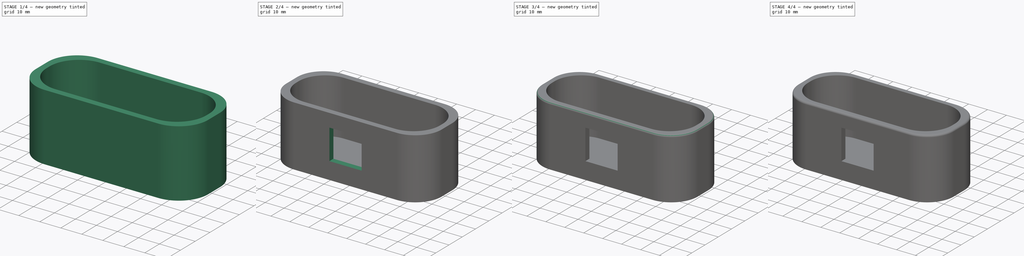
[diagram: build sequence overview — one tinted view per stage of 4, left to right]
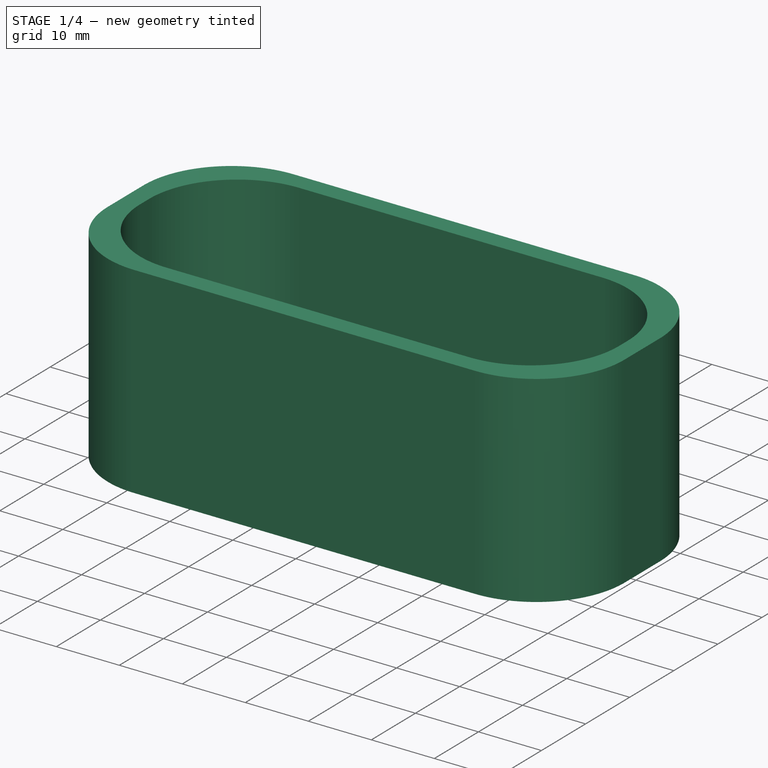
[diagram: stage 1 of 4 — iso view after this stage's code; geometry added in this stage tinted green]
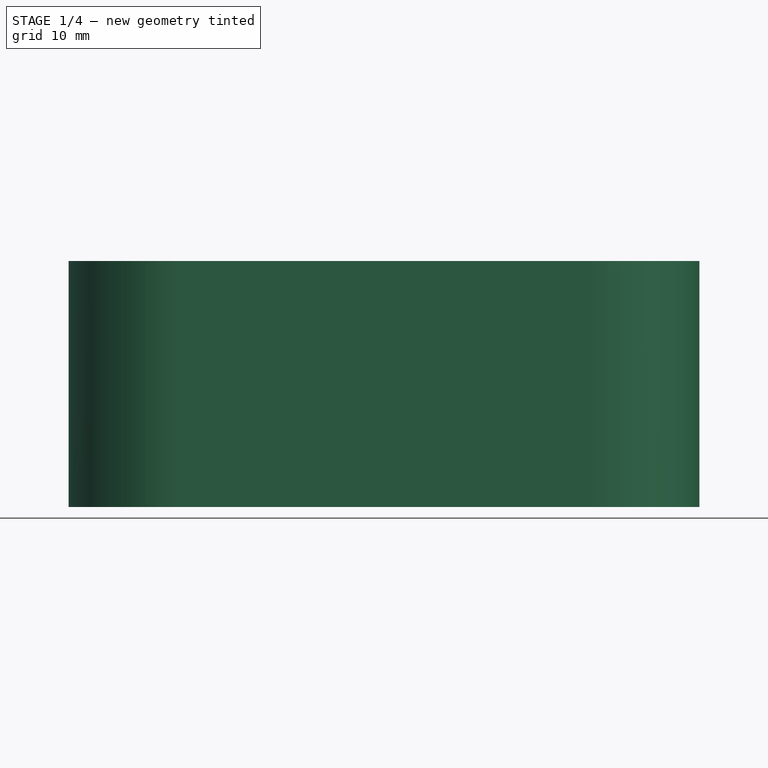
[diagram: stage 1 of 4 — front view after this stage's code; geometry added in this stage tinted green]
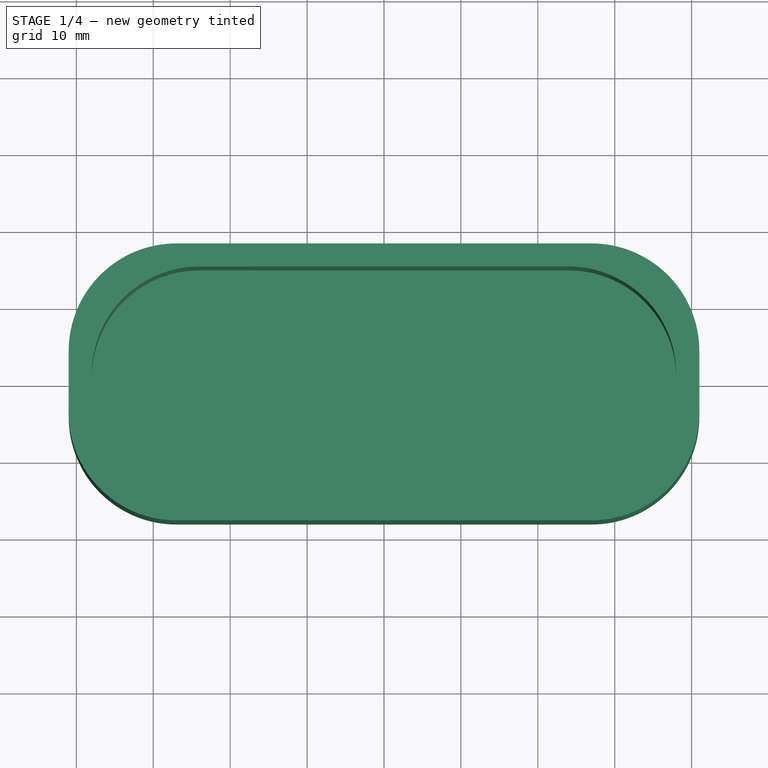
[diagram: stage 1 of 4 — top view after this stage's code; geometry added in this stage tinted green]
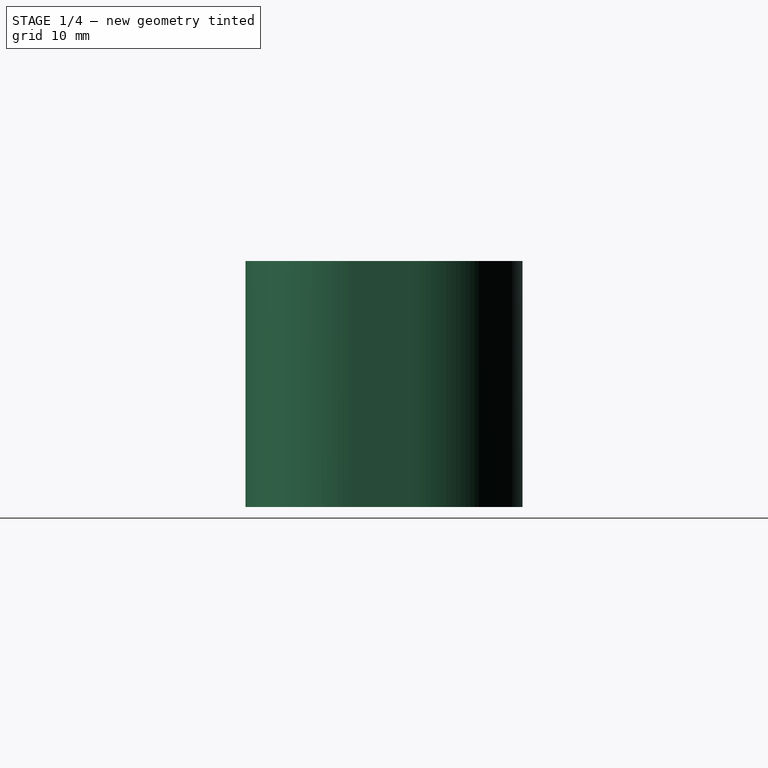
[diagram: stage 1 of 4 — right view after this stage's code; geometry added in this stage tinted green]
FCSTD DOCUMENT  (FreeCAD 0.19R24366 (Git))
Label: xiaomi_case
License: All rights reserved
LicenseURL: http://en.wikipedia.org/wiki/All_rights_reserved
objects: Sketcher::SketchObject×6, PartDesign::Fillet×5, PartDesign::Pocket×4, PartDesign::Pad×2, PartDesign::Chamfer×1, PartDesign::Body×1
note: 31 computed .brp shape members not serialized (recipe doc carries the construction recipe); baked Part::Feature solids carry a one-line shape summary decoded from their .brp

FEATURE [Sketcher::SketchObject] Sketch
  FullyConstrained = true
  MapMode = 5
  Support = -> [XY_Plane]
  sketch-geometry (4):
    g0: LineSegment StartX=-41 StartY=18 StartZ=0 EndX=41 EndY=18 EndZ=0
    g1: LineSegment StartX=41 StartY=18 StartZ=0 EndX=41 EndY=-18 EndZ=0
    g2: LineSegment StartX=41 StartY=-18 StartZ=0 EndX=-41 EndY=-18 EndZ=0
    g3: LineSegment StartX=-41 StartY=-18 StartZ=0 EndX=-41 EndY=18 EndZ=0
  constraints (10):
    c: Coincident(g0,g1)
    c: Coincident(g1,g2)
    c: Coincident(g2,g3)
    c: Coincident(g3,g0)
    c: Horizontal(g0)
    c: Vertical(g1)
    c: Distance(g3) = 36
    c: Distance(g2) = 82
    c: Symmetric(g1,g2,g-2)
    c: Symmetric(g0,g2,g-1)
FEATURE [PartDesign::Pad] Pad  label="Outer Base"
  Direction = (1,1,1)
  Length = 32
  Length2 = 100
  Profile = -> Sketch
  Type = 0
FEATURE [Sketcher::SketchObject] Sketch001
  FullyConstrained = true
  MapMode = 5
  Placement = pos=(0,0,32) rot=(0,0,1;0rad)
  Support = -> [Pad]
  sketch-geometry (4):
    g0: LineSegment StartX=-38 StartY=15 StartZ=0 EndX=38 EndY=15 EndZ=0
    g1: LineSegment StartX=38 StartY=15 StartZ=0 EndX=38 EndY=-15 EndZ=0
    g2: LineSegment StartX=38 StartY=-15 StartZ=0 EndX=-38 EndY=-15 EndZ=0
    g3: LineSegment StartX=-38 StartY=-15 StartZ=0 EndX=-38 EndY=15 EndZ=0
  constraints (10):
    c: Coincident(g0,g1)
    c: Coincident(g1,g2)
    c: Coincident(g2,g3)
    c: Coincident(g3,g0)
    c: Horizontal(g0)
    c: Vertical(g1)
    c: Symmetric(g2,g1,g-2)
    c: Symmetric(g2,g0,g-1)
    c: Distance(g3) = 30
    c: Distance(g2) = 76
FEATURE [PartDesign::Pocket] Pocket  label="Inner Base"
  BaseFeature = -> Pad
  Length = 29
  Length2 = 100
  Profile = -> Sketch001
  Type = 0
FEATURE [PartDesign::Fillet] Fillet  label="Outer Fillet"
  Base = -> Pocket [Edge1,Edge17,Edge5,Edge22,Edge2,Edge18,Edge8,Edge20]
  BaseFeature = -> Pocket
  Radius = 14
  SupportTransform = false
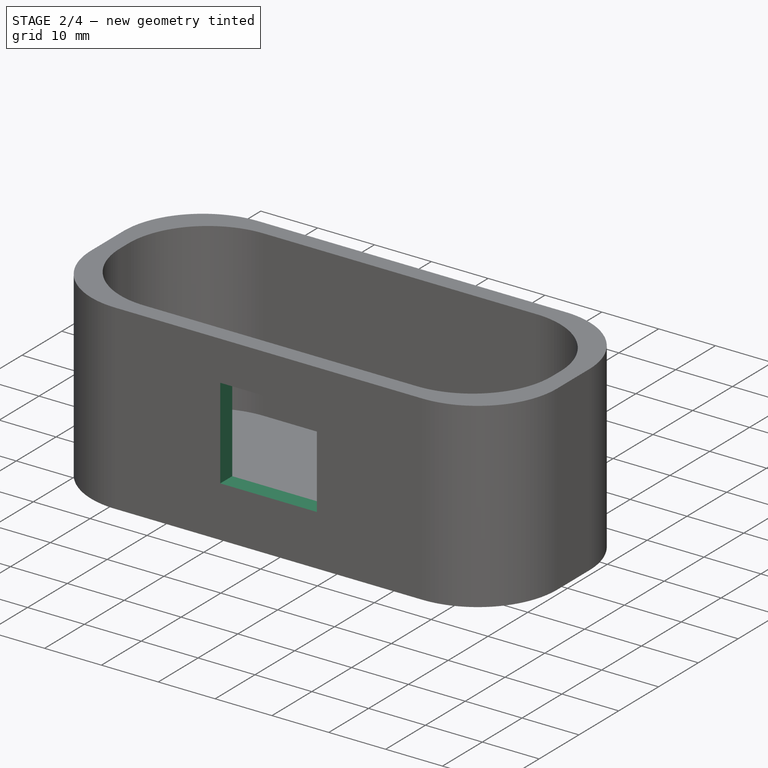
[diagram: stage 2 of 4 — iso view after this stage's code; geometry added in this stage tinted green]
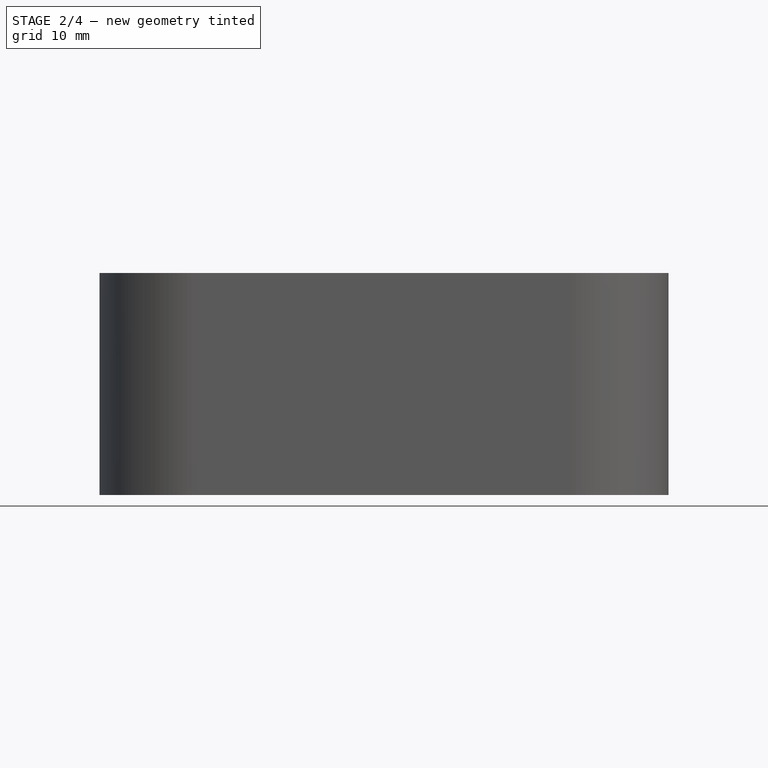
[diagram: stage 2 of 4 — front view after this stage's code; geometry added in this stage tinted green]
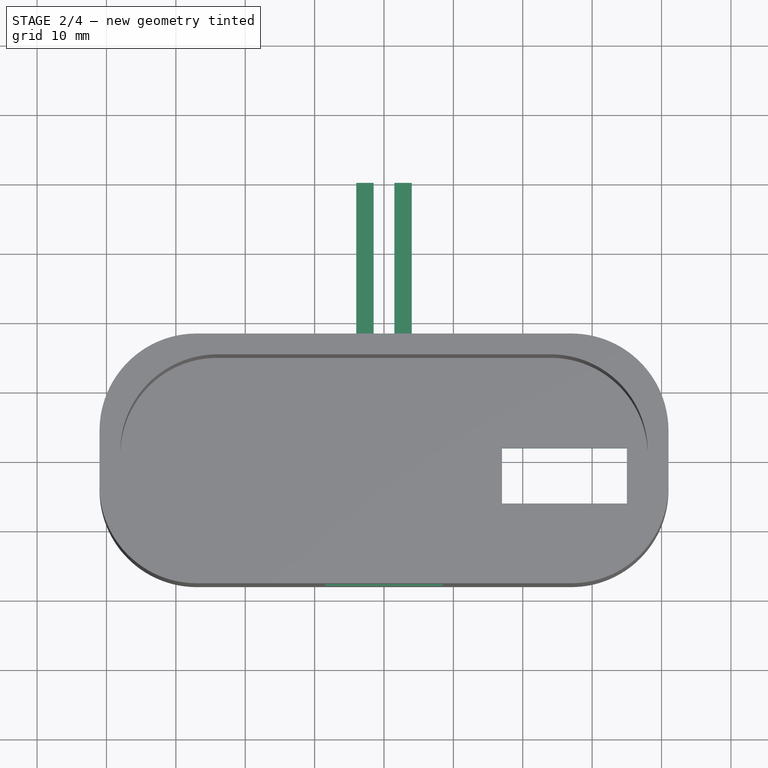
[diagram: stage 2 of 4 — top view after this stage's code; geometry added in this stage tinted green]
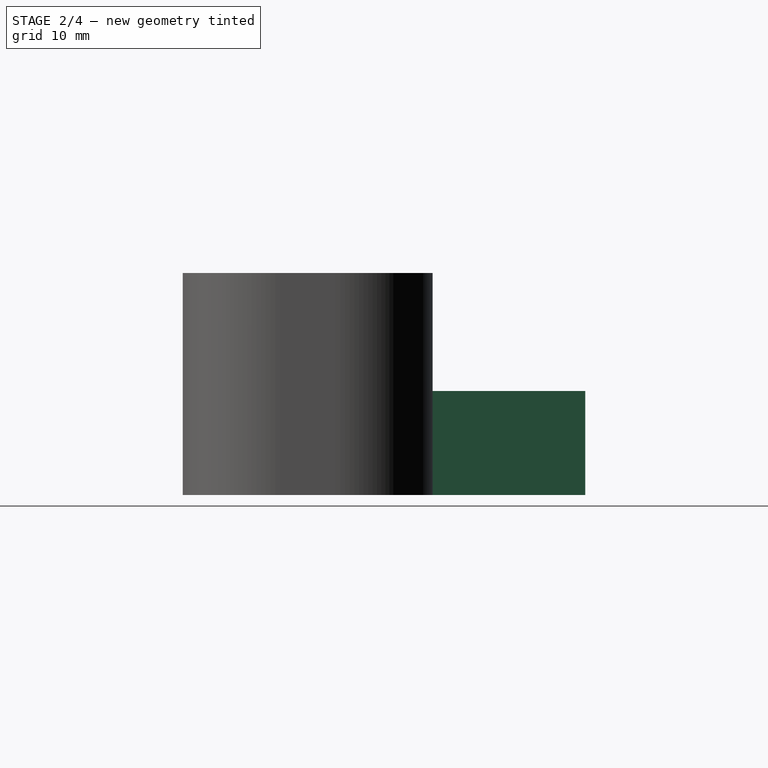
[diagram: stage 2 of 4 — right view after this stage's code; geometry added in this stage tinted green]
FEATURE [Sketcher::SketchObject] Sketch002
  FullyConstrained = true
  MapMode = 5
  Placement = pos=(0,-15,0) rot=(0,0.707107,0.707107;3.14159rad)
  sketch-geometry (4):
    g0: LineSegment StartX=-8.5 StartY=25 StartZ=0 EndX=8.5 EndY=25 EndZ=0
    g1: LineSegment StartX=8.5 StartY=25 StartZ=0 EndX=8.5 EndY=9 EndZ=0
    g2: LineSegment StartX=8.5 StartY=9 StartZ=0 EndX=-8.5 EndY=9 EndZ=0
    g3: LineSegment StartX=-8.5 StartY=9 StartZ=0 EndX=-8.5 EndY=25 EndZ=0
  constraints (11):
    c: Coincident(g0,g1)
    c: Coincident(g1,g2)
    c: Coincident(g2,g3)
    c: Coincident(g3,g0)
    c: Horizontal(g0)
    c: Vertical(g1)
    c: Vertical(g3)
    c: DistanceY(g-1,g2) = 9
    c: Distance(g3) = 16
    c: Symmetric(g2,g1,g-2)
    c: Distance(g2) = 17
FEATURE [PartDesign::Pocket] Pocket001  label="Xiaomi Holder"
  BaseFeature = -> Fillet
  Length = 8
  Length2 = 100
  Profile = -> Sketch002
  Type = 0
FEATURE [Sketcher::SketchObject] Sketch003
  FullyConstrained = true
  MapMode = 5
  Placement = pos=(0,0,0) rot=(1,0,0;3.14159rad)
  Support = -> [Pocket001]
  sketch-geometry (4):
    g0: LineSegment StartX=35 StartY=-2 StartZ=0 EndX=17 EndY=-2 EndZ=0
    g1: LineSegment StartX=17 StartY=-2 StartZ=0 EndX=17 EndY=6 EndZ=0
    g2: LineSegment StartX=17 StartY=6 StartZ=0 EndX=35 EndY=6 EndZ=0
    g3: LineSegment StartX=35 StartY=6 StartZ=0 EndX=35 EndY=-2 EndZ=0
  constraints (12):
    c: Coincident(g0,g1)
    c: Coincident(g1,g2)
    c: Coincident(g2,g3)
    c: Coincident(g3,g0)
    c: Horizontal(g0)
    c: Horizontal(g2)
    c: Vertical(g1)
    c: Vertical(g3)
    c: Distance(g2) = 18
    c: Distance(g3) = 8
    c: DistanceX(g-2,g0) = 35
    c: DistanceY(g-1,g0) = -2
FEATURE [PartDesign::Pocket] Pocket002  label="USB"
  BaseFeature = -> Pocket001
  Length = 5
  Length2 = 100
  Profile = -> Sketch003
  Type = 0
FEATURE [Sketcher::SketchObject] Sketch004
  FullyConstrained = true
  MapMode = 5
  Placement = pos=(0,18,0) rot=(0,0.707107,0.707107;3.14159rad)
  Support = -> [Pocket002]
  sketch-geometry (8):
    g0: LineSegment StartX=1.5 StartY=15 StartZ=0 EndX=4 EndY=15 EndZ=0
    g1: LineSegment StartX=4 StartY=15 StartZ=0 EndX=4 EndY=0 EndZ=0
    g2: LineSegment StartX=4 StartY=0 StartZ=0 EndX=1.5 EndY=0 EndZ=0
    g3: LineSegment StartX=1.5 StartY=0 StartZ=0 EndX=1.5 EndY=15 EndZ=0
    g4: LineSegment StartX=-4 StartY=15 StartZ=0 EndX=-1.5 EndY=15 EndZ=0
    g5: LineSegment StartX=-1.5 StartY=15 StartZ=0 EndX=-1.5 EndY=0 EndZ=0
    g6: LineSegment StartX=-1.5 StartY=0 StartZ=0 EndX=-4 EndY=0 EndZ=0
    g7: LineSegment StartX=-4 StartY=0 StartZ=0 EndX=-4 EndY=15 EndZ=0
  constraints (23):
    c: Coincident(g0,g1)
    c: Coincident(g1,g2)
    c: Coincident(g2,g3)
    c: Coincident(g3,g0)
    c: Horizontal(g0)
    c: Horizontal(g2)
    c: Vertical(g1)
    c: Vertical(g3)
    c: Distance(g1) = 15
    c: Distance(g0) = 2.5
    c: Coincident(g4,g5)
    c: Coincident(g5,g6)
    c: Coincident(g6,g7)
    c: Coincident(g7,g4)
    c: Horizontal(g4)
    c: Horizontal(g6)
    c: Vertical(g5)
    c: Vertical(g7)
    c: Equal(g0,g4)
    c: Equal(g5,g3)
    c: Symmetric(g5,g2,g-2)
    c: Distance(g5,g2) = 3
    c: DistanceY(g-1,g6) = 0
FEATURE [PartDesign::Pad] Pad001
  BaseFeature = -> Pocket002
  Direction = (1,1,1)
  Length = 22
  Length2 = 100
  Profile = -> Sketch004
  Type = 0
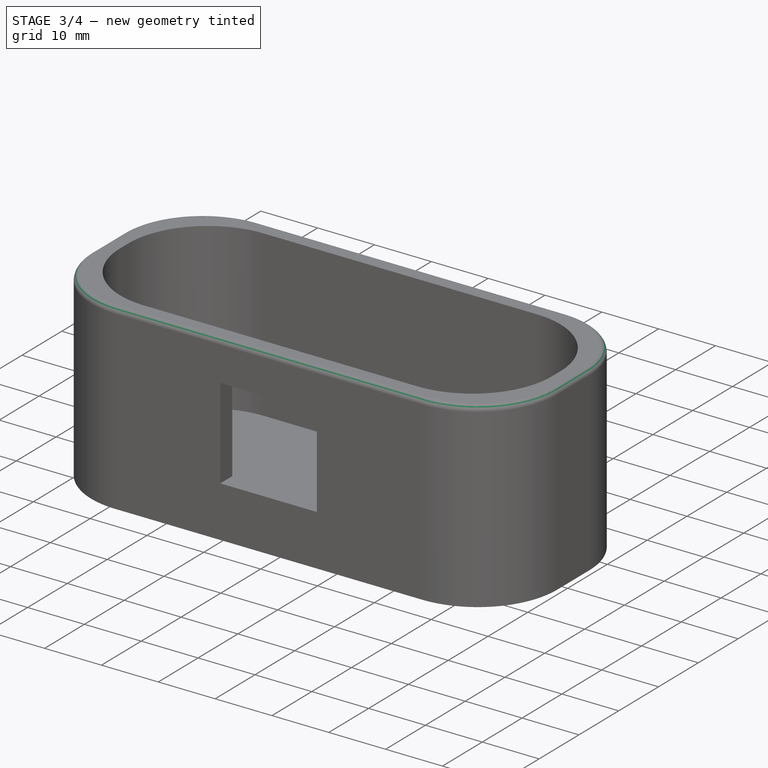
[diagram: stage 3 of 4 — iso view after this stage's code; geometry added in this stage tinted green]
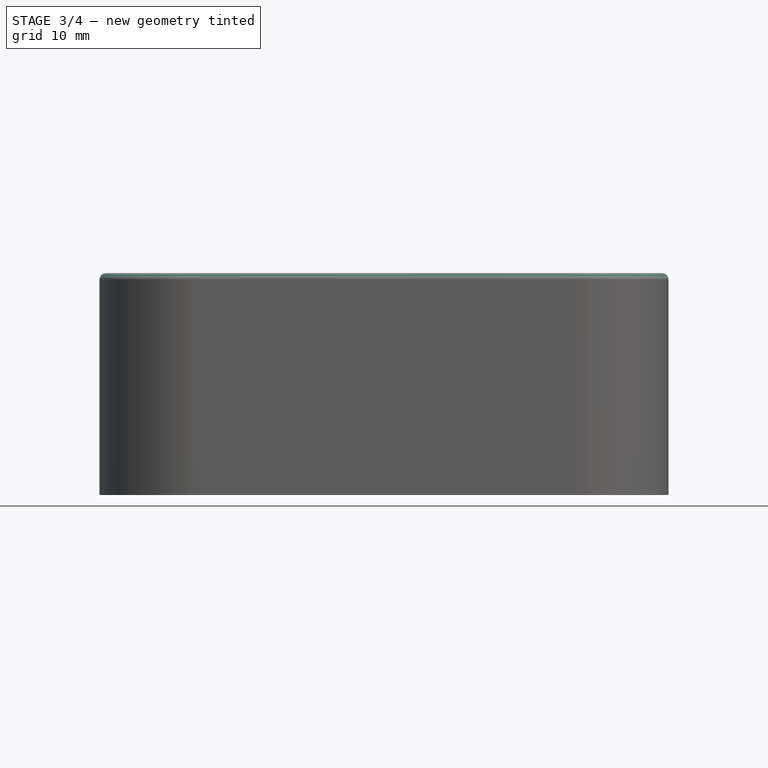
[diagram: stage 3 of 4 — front view after this stage's code; geometry added in this stage tinted green]
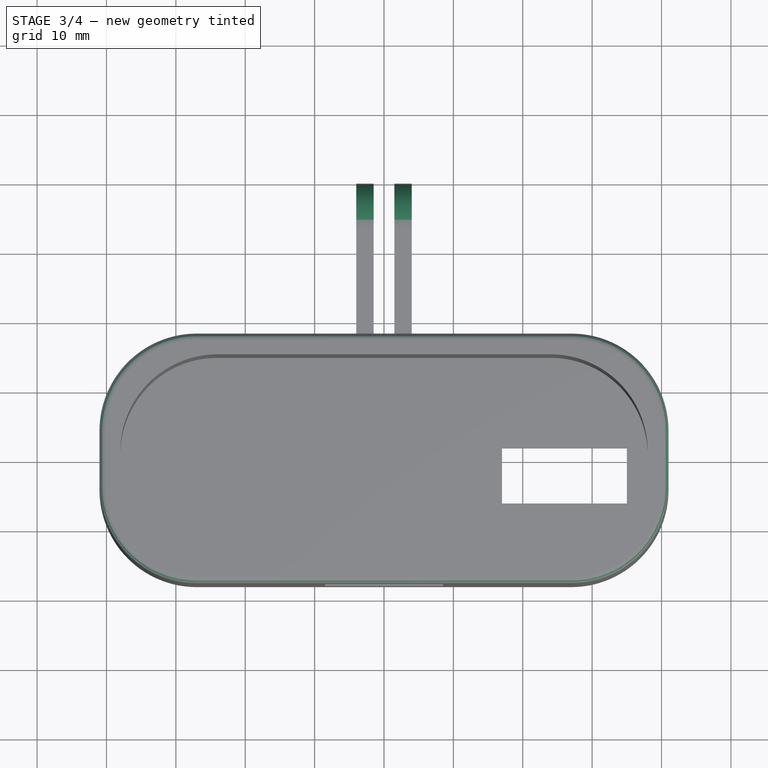
[diagram: stage 3 of 4 — top view after this stage's code; geometry added in this stage tinted green]
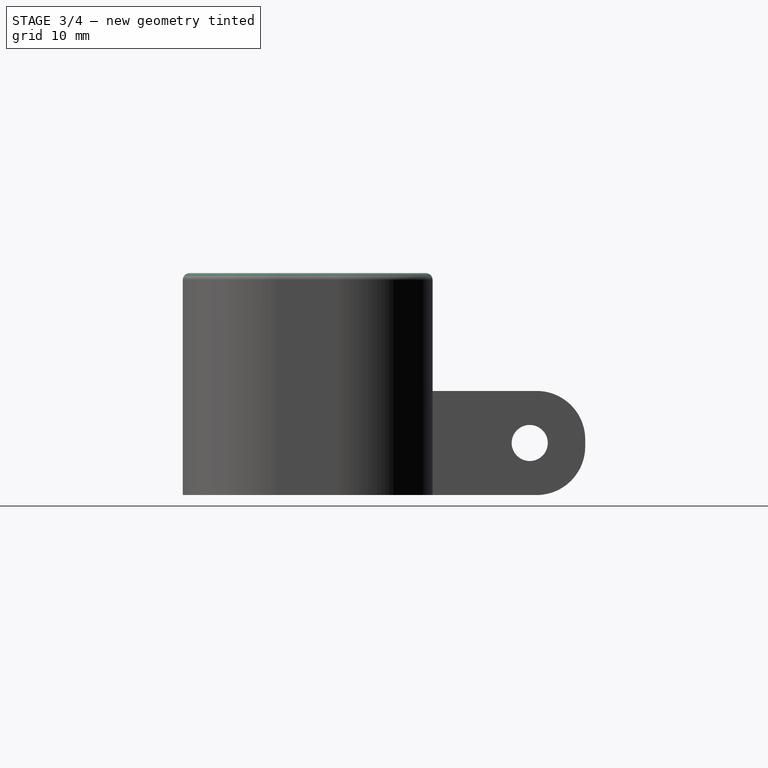
[diagram: stage 3 of 4 — right view after this stage's code; geometry added in this stage tinted green]
FEATURE [Sketcher::SketchObject] Sketch005
  FullyConstrained = true
  MapMode = 5
  Placement = pos=(4,0,0) rot=(0.57735,0.57735,0.57735;2.0944rad)
  Support = -> [Pad001]
  sketch-geometry (1):
    g0: Circle CenterX=32 CenterY=7.5 CenterZ=0 NormalX=0 NormalY=0 NormalZ=1 AngleXU=0 Radius=2.6
  constraints (3):
    c: Radius(g0) = 2.6
    c: DistanceY(g-1,g0) = 7.5
    c: DistanceX(g-2,g0) = 32
FEATURE [PartDesign::Pocket] Pocket003
  BaseFeature = -> Pad001
  Length = 12
  Length2 = 100
  Profile = -> Sketch005
  Type = 0
FEATURE [PartDesign::Fillet] Fillet001
  Base = -> Pocket003 [Edge46,Edge47,Edge49,Edge51,Edge50,Edge48,Edge45,Edge11]
  BaseFeature = -> Pocket003
  Radius = 1
  SupportTransform = false
FEATURE [PartDesign::Fillet] Fillet002
  Base = -> Fillet001 [Edge47,Edge38,Edge70,Edge71]
  BaseFeature = -> Fillet001
  Radius = 7
  SupportTransform = false
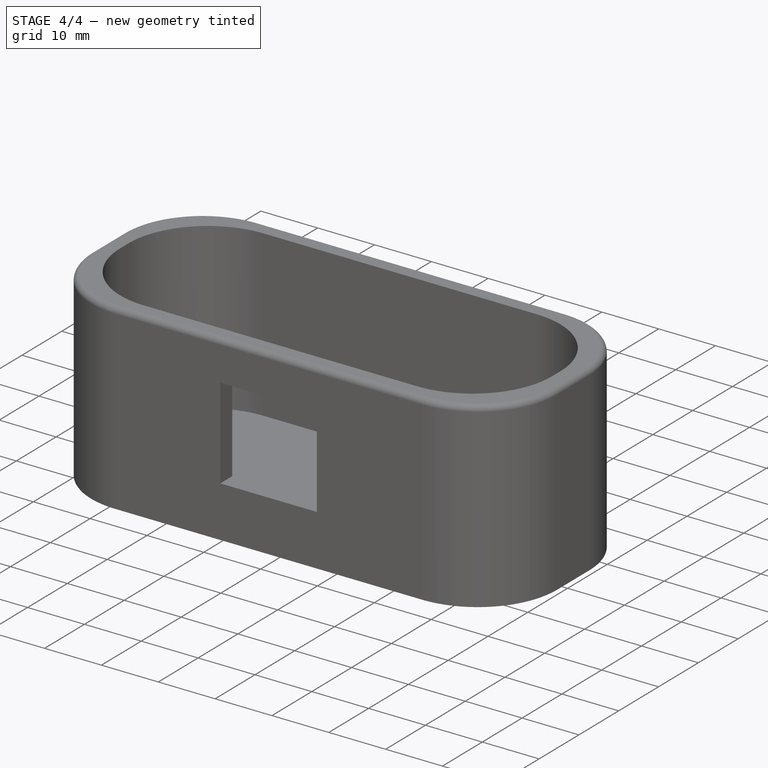
[diagram: stage 4 of 4 — iso view after this stage's code; geometry added in this stage tinted green]
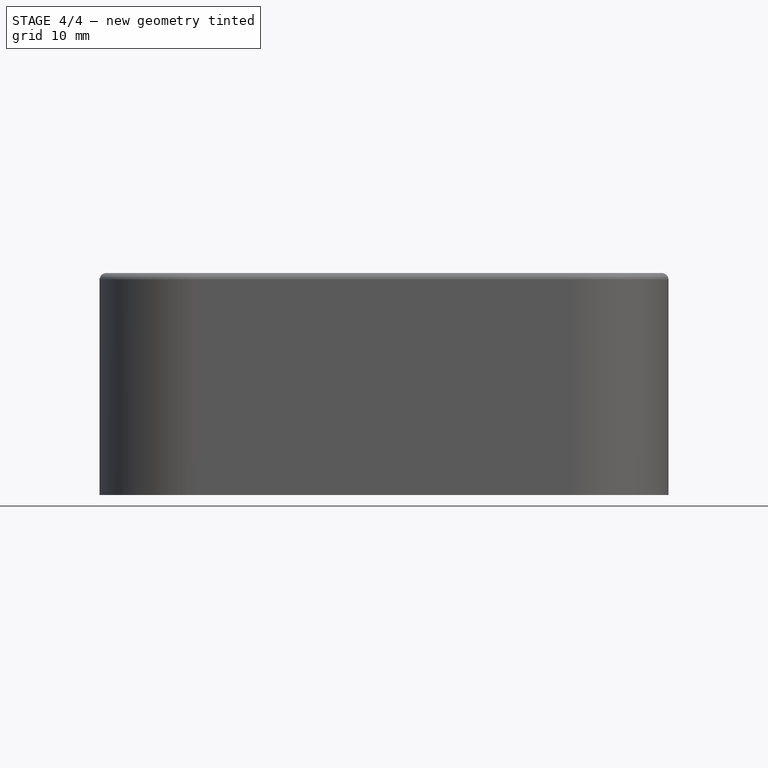
[diagram: stage 4 of 4 — front view after this stage's code; geometry added in this stage tinted green]
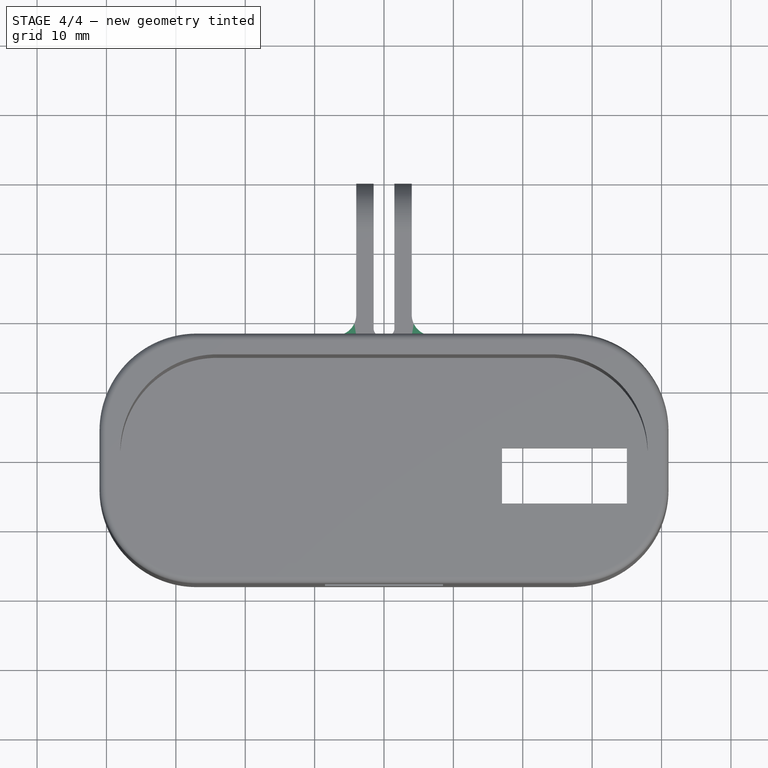
[diagram: stage 4 of 4 — top view after this stage's code; geometry added in this stage tinted green]
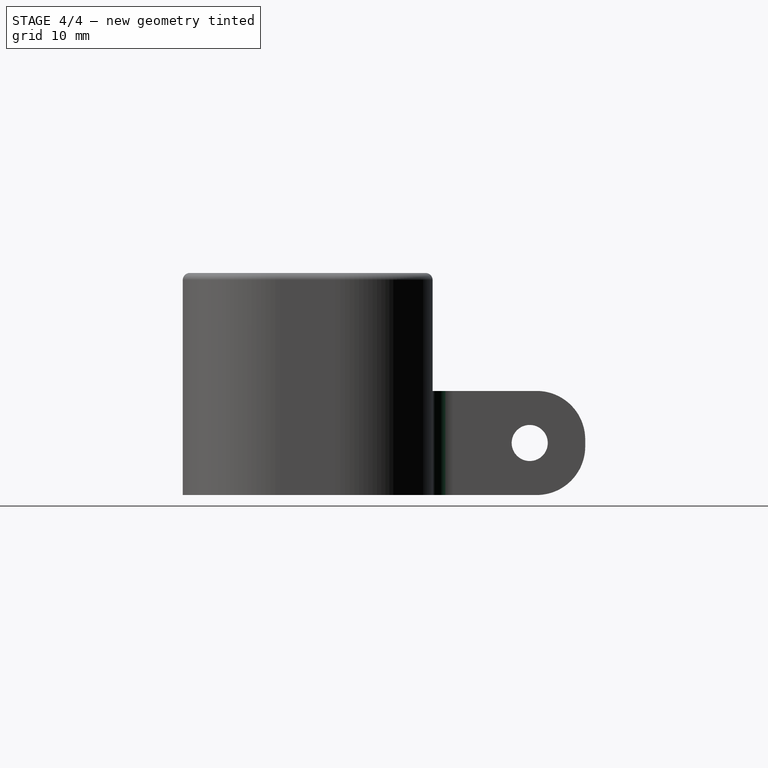
[diagram: stage 4 of 4 — right view after this stage's code; geometry added in this stage tinted green]
FEATURE [PartDesign::Fillet] Fillet003
  Base = -> Fillet002 [Edge3,Edge19]
  BaseFeature = -> Fillet002
  Radius = 3
  SupportTransform = false
FEATURE [PartDesign::Fillet] Fillet004
  Base = -> Fillet003 [Edge47,Edge42]
  BaseFeature = -> Fillet003
  Radius = 1
  SupportTransform = false
FEATURE [PartDesign::Chamfer] Chamfer
  Angle = 45
  Base = -> Fillet004 [Edge126]
  BaseFeature = -> Fillet004
  ChamferType = 0
  FlipDirection = false
  Size = 1
  Size2 = 1
  SupportTransform = false
FEATURE [PartDesign::Body] Body
  Group = -> [Sketch,Pad,Sketch001,Pocket,Fillet,Sketch002,Pocket001,Sketch003,Sketch004,Sketch005,Pocket002,Pad001,Pocket003,Fillet001,Fillet002,Fillet003,Fillet004,Chamfer]
  Origin = -> Origin
  Tip = -> Chamfer
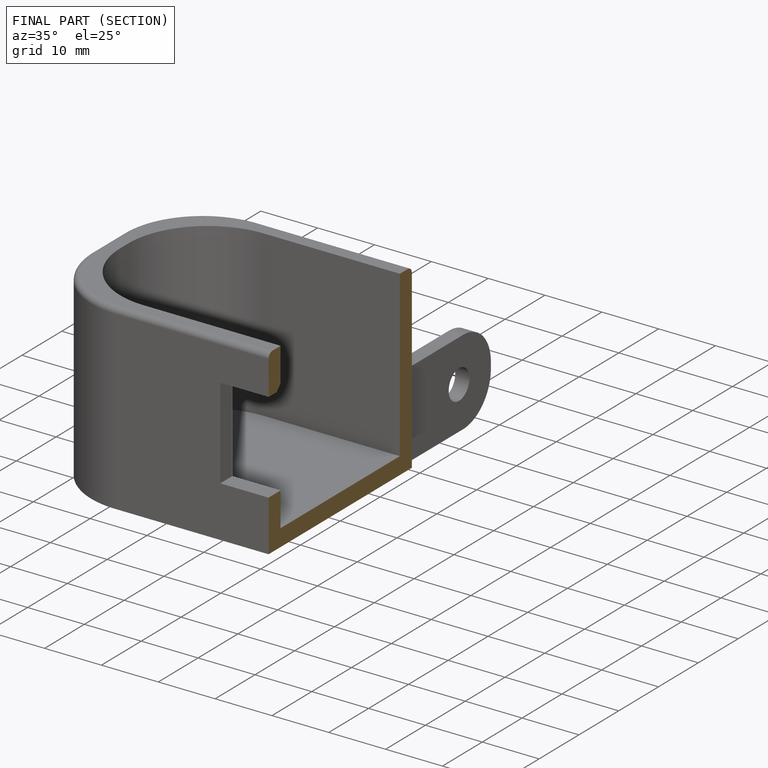
[diagram: finished part — half-section view (interior)]
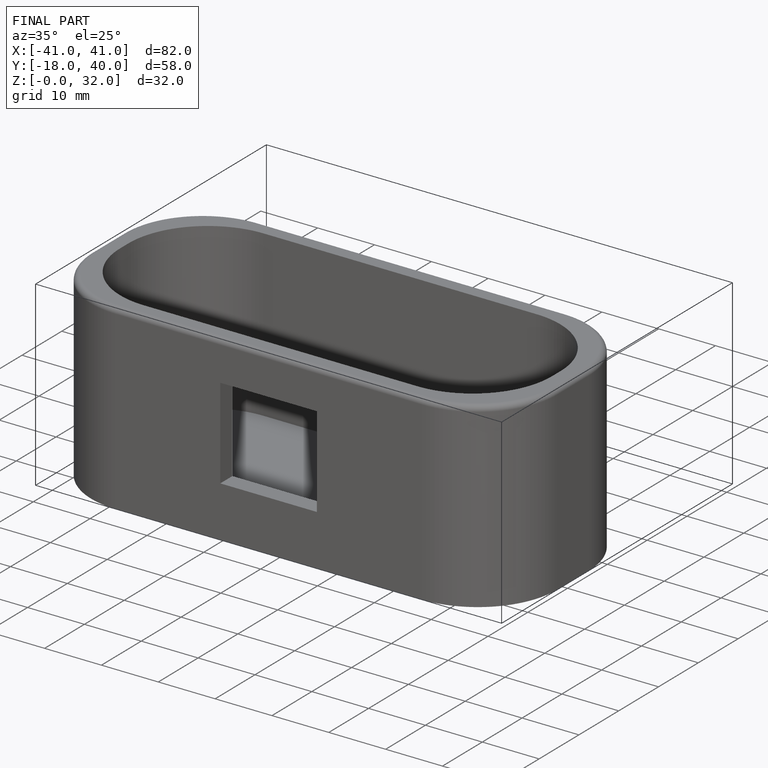
[diagram: finished part — iso view with bounding-box wireframe]
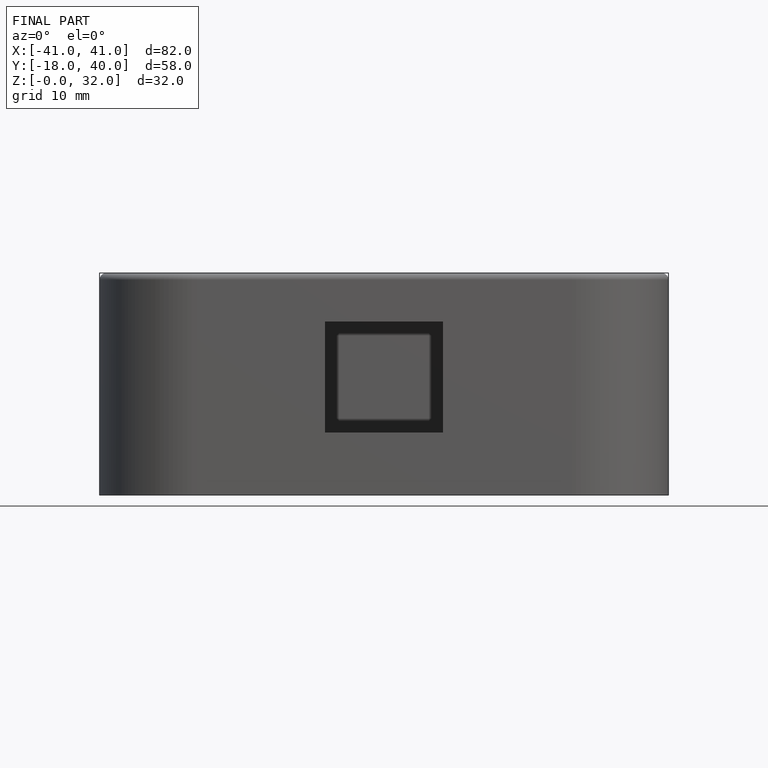
[diagram: finished part — front view with bounding-box wireframe]
